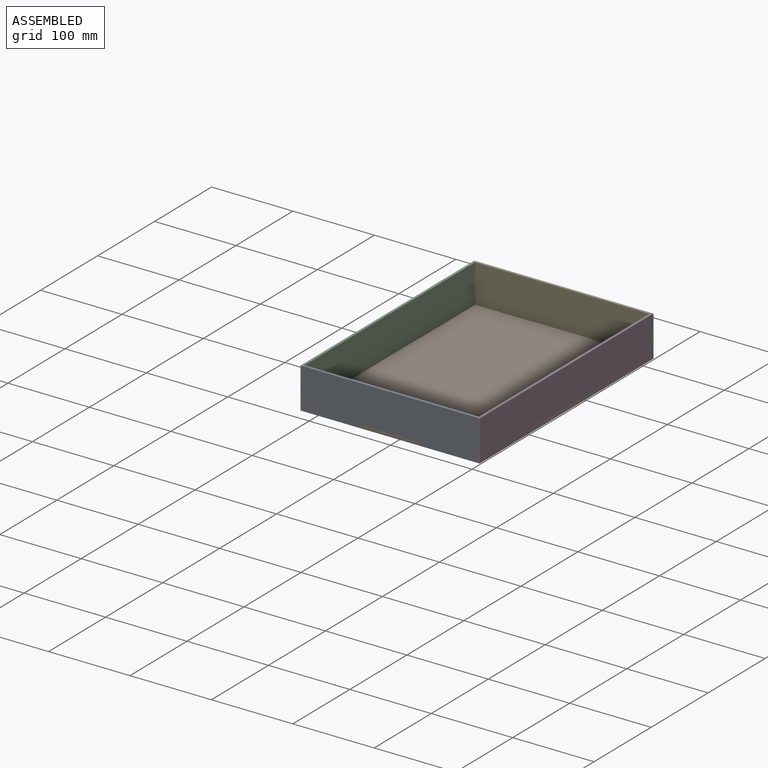
[diagram: assembled view]
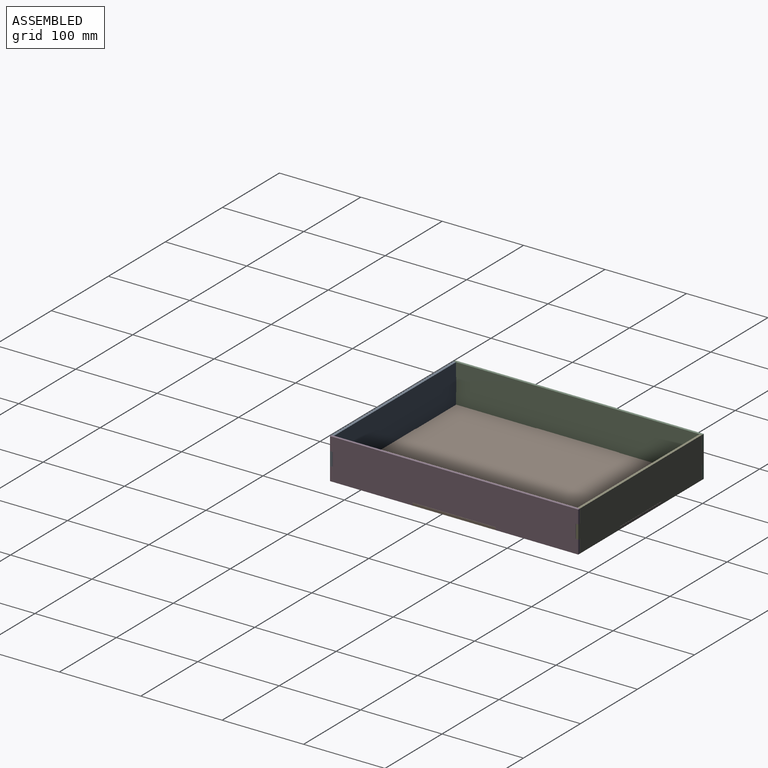
[diagram: assembled view, second angle]
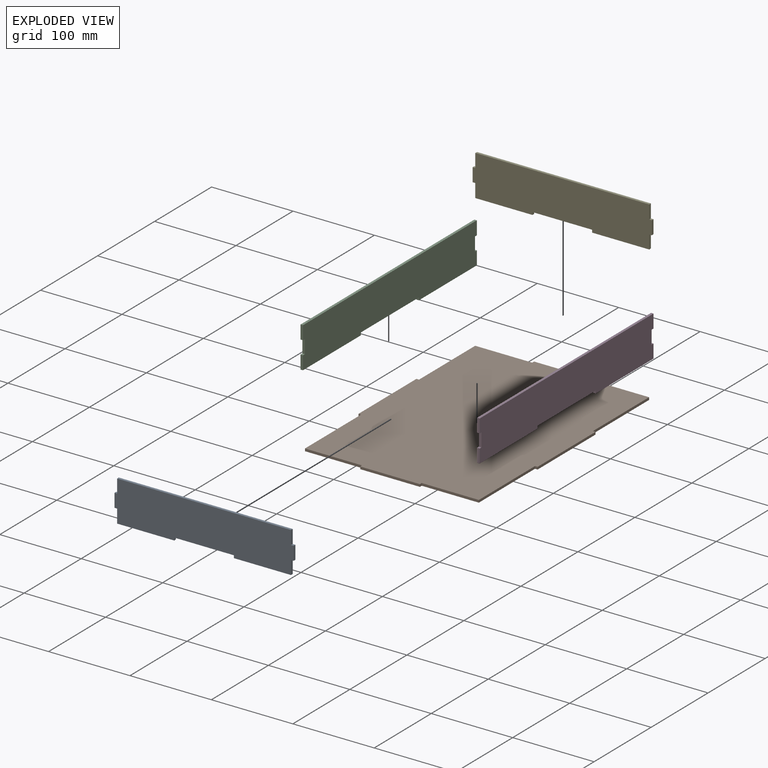
[diagram: exploded view]
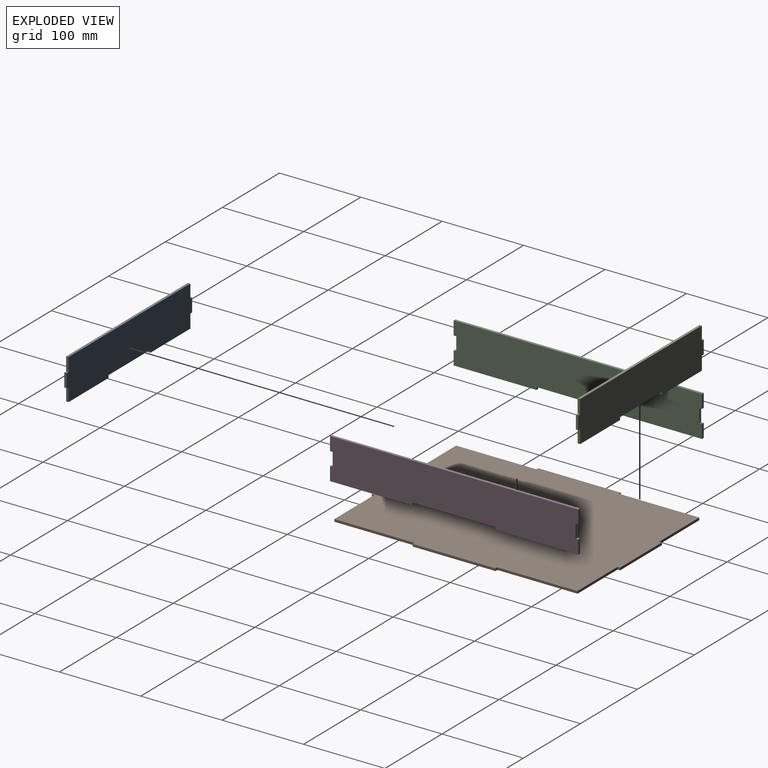
[diagram: exploded view, second angle]
ASSEMBLY  parts=5 mates=15
PART A: 18 faces, bbox 220x3x50 mm
  f0: plane 16.67x3mm, normal (-1,0,0), area 50mm2, adj f5,f6,f7,f10
  f1: plane 70.13x3mm, normal (0,0,-1), area 210.4mm2, adj f5,f6,f13,f15
  f2: plane 70.13x3mm, normal (0,0,-1), area 210.4mm2, adj f5,f6,f9,f12
  f3: plane 16.67x3mm, normal (1,0,0), area 50mm2, adj f5,f6,f14,f17
  f4: plane 213.6x3mm, normal (0,0,1), area 640.8mm2, adj f5,f6,f8,f16
  f5: plane 220x50mm, normal (0,-1,0), area 10552mm2, adj f0,f1,f2,f3,f4,f7,f8,f9
  f6: plane 220x50mm, normal (0,1,0), area 10552mm2, adj f0,f1,f2,f3,f4,f7,f8,f9
  f7: plane 3.2x3mm, normal (0,0,1), area 9.6mm2, adj f0,f5,f6,f8
  f8: plane 16.67x3mm, normal (-1,0,0), area 50mm2, adj f4,f5,f6,f7
  f9: plane 16.67x3mm, normal (-1,0,0), area 50mm2, adj f2,f5,f6,f10
  f10: plane 3.2x3mm, normal (0,0,-1), area 9.6mm2, adj f0,f5,f6,f9
  f11: plane 73.33x3mm, normal (0,0,-1), area 220mm2, adj f5,f6,f12,f13
  f12: plane 3.2x3mm, normal (1,0,0), area 9.6mm2, adj f2,f5,f6,f11
  f13: plane 3.2x3mm, normal (-1,0,0), area 9.6mm2, adj f1,f5,f6,f11
  f14: plane 3.2x3mm, normal (0,0,-1), area 9.6mm2, adj f3,f5,f6,f15
  f15: plane 16.67x3mm, normal (1,0,0), area 50mm2, adj f1,f5,f6,f14
  f16: plane 16.67x3mm, normal (1,0,0), area 50mm2, adj f4,f5,f6,f17
  f17: plane 3.2x3mm, normal (0,0,1), area 9.6mm2, adj f3,f5,f6,f16
PART B: 22 faces, bbox 220x3x305 mm
  f0: plane 101.67x3mm, normal (1,0,0), area 305mm2, adj f3,f4,f13,f18
  f1: plane 101.67x3mm, normal (-1,0,0), area 305mm2, adj f3,f4,f6,f17
  f2: plane 73.33x3mm, normal (0,0,-1), area 220mm2, adj f3,f4,f14,f21
  f3: plane 305x220mm, normal (0,-1,0), area 64901mm2, adj f0,f1,f2,f5,f6,f7,f8,f9
  f4: plane 305x220mm, normal (0,1,0), area 64901mm2, adj f0,f1,f2,f5,f6,f7,f8,f9
  f5: plane 73.33x3mm, normal (0,0,1), area 220mm2, adj f3,f4,f9,f10
  f6: plane 3.2x3mm, normal (0,0,1), area 9.6mm2, adj f1,f3,f4,f7
  f7: plane 98.47x3mm, normal (-1,0,0), area 295.4mm2, adj f3,f4,f6,f8
  f8: plane 70.13x3mm, normal (0,0,1), area 210.4mm2, adj f3,f4,f7,f9
  f9: plane 3.2x3mm, normal (-1,0,0), area 9.6mm2, adj f3,f4,f5,f8
  f10: plane 3.2x3mm, normal (1,0,0), area 9.6mm2, adj f3,f4,f5,f11
  f11: plane 70.13x3mm, normal (0,0,1), area 210.4mm2, adj f3,f4,f10,f12
  f12: plane 98.47x3mm, normal (1,0,0), area 295.4mm2, adj f3,f4,f11,f13
  f13: plane 3.2x3mm, normal (0,0,1), area 9.6mm2, adj f0,f3,f4,f12
  f14: plane 3.2x3mm, normal (-1,0,0), area 9.6mm2, adj f2,f3,f4,f15
  f15: plane 70.13x3mm, normal (0,0,-1), area 210.4mm2, adj f3,f4,f14,f16
  f16: plane 98.47x3mm, normal (-1,0,0), area 295.4mm2, adj f3,f4,f15,f17
  f17: plane 3.2x3mm, normal (0,0,-1), area 9.6mm2, adj f1,f3,f4,f16
  f18: plane 3.2x3mm, normal (0,0,-1), area 9.6mm2, adj f0,f3,f4,f19
  f19: plane 98.47x3mm, normal (1,0,0), area 295.4mm2, adj f3,f4,f18,f20
  f20: plane 70.13x3mm, normal (0,0,-1), area 210.4mm2, adj f3,f4,f19,f21
  f21: plane 3.2x3mm, normal (1,0,0), area 9.6mm2, adj f2,f3,f4,f20
PART C: 18 faces, bbox 305x3x50 mm
  f0: plane 16.67x3mm, normal (-1,0,0), area 50mm2, adj f6,f7,f8,f13
  f1: plane 101.67x3mm, normal (0,0,-1), area 305mm2, adj f5,f7,f8,f11
  f2: plane 16.67x3mm, normal (1,0,0), area 50mm2, adj f6,f7,f8,f15
  f3: plane 16.67x3mm, normal (-1,0,0), area 50mm2, adj f4,f7,f8,f14
  f4: plane 101.67x3mm, normal (0,0,-1), area 305mm2, adj f3,f7,f8,f10
  f5: plane 16.67x3mm, normal (1,0,0), area 50mm2, adj f1,f7,f8,f17
  f6: plane 305x3mm, normal (0,0,1), area 915mm2, adj f0,f2,f7,f8
  f7: plane 305x50mm, normal (0,-1,0), area 14818mm2, adj f0,f1,f2,f3,f4,f5,f6,f9
  f8: plane 305x50mm, normal (0,1,0), area 14818mm2, adj f0,f1,f2,f3,f4,f5,f6,f9
  f9: plane 101.67x3mm, normal (0,0,-1), area 305mm2, adj f7,f8,f10,f11
  f10: plane 3.2x3mm, normal (1,0,0), area 9.6mm2, adj f4,f7,f8,f9
  f11: plane 3.2x3mm, normal (-1,0,0), area 9.6mm2, adj f1,f7,f8,f9
  f12: plane 16.67x3mm, normal (-1,0,0), area 50mm2, adj f7,f8,f13,f14
  f13: plane 3.2x3mm, normal (0,0,-1), area 9.6mm2, adj f0,f7,f8,f12
  f14: plane 3.2x3mm, normal (0,0,1), area 9.6mm2, adj f3,f7,f8,f12
  f15: plane 3.2x3mm, normal (0,0,-1), area 9.6mm2, adj f2,f7,f8,f16
  f16: plane 16.67x3mm, normal (1,0,0), area 50mm2, adj f7,f8,f15,f17
  f17: plane 3.2x3mm, normal (0,0,1), area 9.6mm2, adj f5,f7,f8,f16
PART D: same geometry as C
PART E: same geometry as A
PLACE A t=(-458.44,-371.56,17.48)mm
PLACE B rot(axis=(-1,0,0),90deg) t=(-458.44,-374.56,17.48)mm fixed
PLACE C rot(axis=(0,0,-1),90deg) t=(-455.44,-69.56,17.48)mm
PLACE D rot(axis=(0,0,-1),90deg) t=(-238.44,-69.56,17.48)mm
PLACE E t=(-458.44,-69.56,17.48)mm
MATE planar C.f1 <-> B.f4  axis (0,0,-1) through (-456.94,-323.72,17.48)mm
MATE planar E.f0 <-> C.f7  axis (-1,0,0) through (-458.44,-71.06,42.48)mm
MATE planar D.f4 <-> B.f4  axis (0,0,-1) through (-239.94,-120.39,17.48)mm
MATE planar A.f5 <-> B.f2  axis (0,-1,0) through (-348.44,-374.56,43)mm
MATE planar E.f2 <-> B.f4  axis (0,0,-1) through (-420.18,-71.06,17.48)mm
MATE planar A.f4 <-> D.f6  axis (0,0,1) through (-348.44,-373.06,67.48)mm
MATE planar D.f3 <-> E.f6  axis (0,1,0) through (-239.94,-69.56,25.81)mm
MATE planar E.f0 <-> C.f7  axis (-1,0,0) through (-458.44,-71.06,42.48)mm
MATE planar D.f8 <-> B.f0  axis (1,0,0) through (-238.44,-222.06,42.99)mm
MATE planar B.f5 <-> E.f6  axis (0,1,0) through (-348.44,-69.56,18.98)mm
MATE planar C.f7 <-> B.f1  axis (-1,0,0) through (-458.44,-120.39,17.48)mm
MATE planar C.f7 <-> A.f0  axis (-1,0,0) through (-458.44,-323.72,17.48)mm
MATE planar A.f5 <-> D.f2  axis (0,-1,0) through (-420.18,-374.56,17.48)mm
MATE planar C.f3 <-> B.f5  axis (0,1,0) through (-456.94,-69.56,25.81)mm
MATE planar E.f6 <-> B.f5  axis (0,1,0) through (-348.44,-69.56,43)mm
